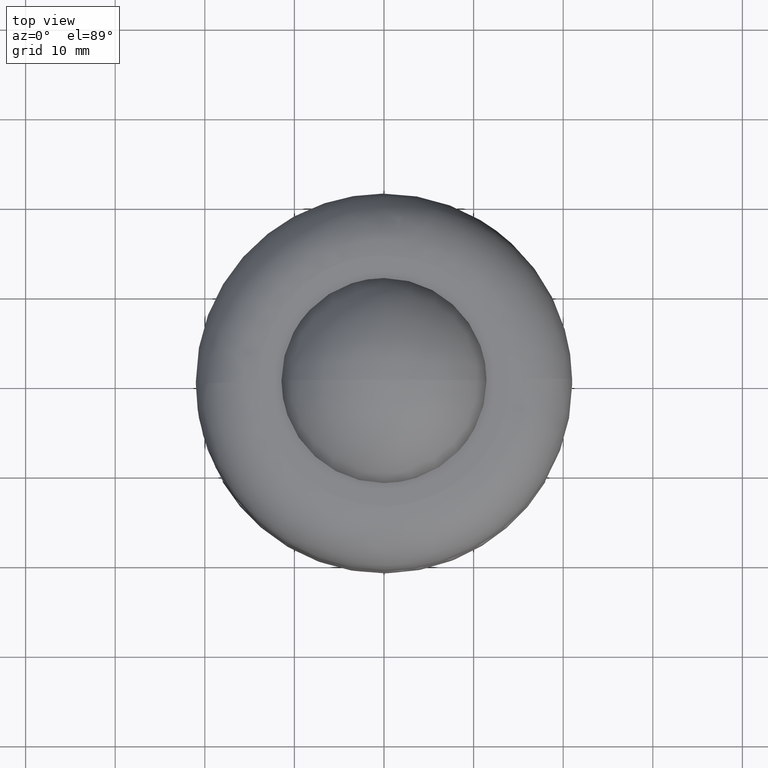
[diagram: clean part render]
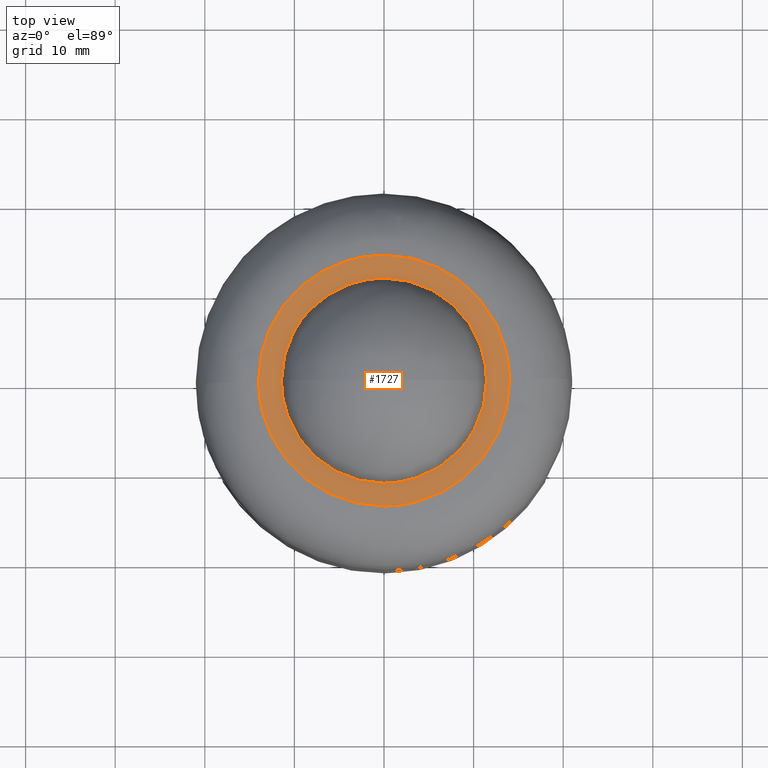
[diagram: same view with one face highlighted and labeled with its STEP entity id]
A machine part, top view. The second image highlights one B-rep face of the part: STEP entity #1727.
In plain terms, the highlighted face is a freeform B-spline surface patch.
Its self-contained STEP definition (entity closure, byte-faithful):
#1274=CARTESIAN_POINT('',(8.303556454866023,-7.879780887124213,18.500000000000000));
#1275=VERTEX_POINT('',#1274);
#1281=CARTESIAN_POINT('',(11.447270417003340,0.0,18.500000000000000));
#1282=VERTEX_POINT('',#1281);
#1283=CARTESIAN_POINT('',(11.447270417003340,0.0,18.500000000000000));
#1284=CARTESIAN_POINT('',(11.447320000426661,-0.633719969441657,18.499999999999879));
#1285=CARTESIAN_POINT('',(11.358697197519451,-1.697441727161382,18.500000000000199));
#1286=CARTESIAN_POINT('',(10.983668924799099,-3.355719295685856,18.499999999999851));
#1287=CARTESIAN_POINT('',(10.396849646364190,-4.906287065083700,18.500000000000089));
#1288=CARTESIAN_POINT('',(9.480059231251454,-6.500137004076095,18.500000000000060));
#1289=CARTESIAN_POINT('',(8.724227606796092,-7.436541015938870,18.499999999999901));
#1290=CARTESIAN_POINT('',(8.303556454866023,-7.879780887124213,18.500000000000000));
#1291=B_SPLINE_CURVE_WITH_KNOTS('',3,(#1283,#1284,#1285,#1286,#1287,#1288,#1289,#1290),.UNSPECIFIED.,.F.,.U.,(4,1,1,1,1,4),(7.953739E-009,1.901153511883061,3.191224342158241,5.092374427312802,6.857735032905979,8.690989031151139),.UNSPECIFIED.);
#1292=EDGE_CURVE('',#1282,#1275,#1291,.T.);
#1294=CARTESIAN_POINT('',(0.000000589903508,11.447270417003320,18.500000000000000));
#1295=VERTEX_POINT('',#1294);
#1296=CARTESIAN_POINT('',(0.000000589903508,11.447270417003320,18.500000000000000));
#1297=CARTESIAN_POINT('',(0.468259847205190,11.447282390936641,18.499999999999972));
#1298=CARTESIAN_POINT('',(1.451612652570179,11.386860953167769,18.500000000000011));
#1299=CARTESIAN_POINT('',(2.811166645851580,11.125093794531240,18.500000000000060));
#1300=CARTESIAN_POINT('',(4.039235827900971,10.731876239727921,18.499999999999950));
#1301=CARTESIAN_POINT('',(5.242589343448349,10.207294843110979,18.500000000000028));
#1302=CARTESIAN_POINT('',(6.538121012254577,9.446927869469979,18.500000000000121));
#1303=CARTESIAN_POINT('',(7.781714290151610,8.445334672533445,18.499999999999812));
#1304=CARTESIAN_POINT('',(8.938773603676742,7.215012677131437,18.500000000000131));
#1305=CARTESIAN_POINT('',(9.868134850958331,5.886822632998791,18.499999999999918));
#1306=CARTESIAN_POINT('',(10.566367869944070,4.478099744047025,18.499999999999819));
#1307=CARTESIAN_POINT('',(11.039986178784829,3.128398424708613,18.500000000000590));
#1308=CARTESIAN_POINT('',(11.364483222455320,1.662324250195984,18.499999999997840));
#1309=CARTESIAN_POINT('',(11.447305113705340,0.585328934192129,18.500000000001901));
#1310=CARTESIAN_POINT('',(11.447270417003340,0.0,18.500000000000000));
#1311=B_SPLINE_CURVE_WITH_KNOTS('',3,(#1296,#1297,#1298,#1299,#1300,#1301,#1302,#1303,#1304,#1305,#1306,#1307,#1308,#1309,#1310),.UNSPECIFIED.,.F.,.U.,(4,1,1,1,1,1,1,1,1,1,1,1,4),(0.000000030570249,1.404779889535721,2.950063587312441,4.144140803687536,5.267980348793644,6.883496906648892,8.639501712824668,10.044266130878849,11.940744284501109,13.486019010303350,14.750338572755259,16.225373062554802,17.981358197865521),.UNSPECIFIED.);
#1312=EDGE_CURVE('',#1295,#1282,#1311,.T.);
#1314=CARTESIAN_POINT('',(-8.303556454866001,7.879780887124189,18.500000000000000));
#1315=VERTEX_POINT('',#1314);
#1316=CARTESIAN_POINT('',(-8.303556454866001,7.879780887124189,18.500000000000000));
#1317=CARTESIAN_POINT('',(-7.754068797564290,8.459014075701516,18.500000000000050));
#1318=CARTESIAN_POINT('',(-6.810632311453194,9.264662142930463,18.500000000000000));
#1319=CARTESIAN_POINT('',(-5.318856103373752,10.169575634758370,18.500000000000000));
#1320=CARTESIAN_POINT('',(-3.814468589894138,10.844435355692889,18.499999999999829));
#1321=CARTESIAN_POINT('',(-2.008069236934327,11.331027979559840,18.500000000000082));
#1322=CARTESIAN_POINT('',(-0.653227442371821,11.447311547447580,18.499999999999940));
#1323=CARTESIAN_POINT('',(0.000000589903508,11.447270417003320,18.500000000000000));
#1324=B_SPLINE_CURVE_WITH_KNOTS('',3,(#1316,#1317,#1318,#1319,#1320,#1321,#1322,#1323),.UNSPECIFIED.,.F.,.U.,(4,1,1,1,1,4),(9.023557E-009,2.395173816305502,3.701632821560580,5.225823927819338,7.330684568304528,9.290370067449166),.UNSPECIFIED.);
#1325=EDGE_CURVE('',#1315,#1295,#1324,.T.);
#1355=CARTESIAN_POINT('',(-11.447270417003340,0.0,18.500000000000000));
#1356=VERTEX_POINT('',#1355);
#1357=CARTESIAN_POINT('',(-11.447270417003340,0.0,18.500000000000000));
#1358=CARTESIAN_POINT('',(-11.447311341483980,0.611086154012915,18.500000000000071));
#1359=CARTESIAN_POINT('',(-11.361884087224920,1.674812347984572,18.499999999999890));
#1360=CARTESIAN_POINT('',(-11.041040738788480,3.113179381243570,18.500000000000099));
#1361=CARTESIAN_POINT('',(-10.604992252249460,4.377325183961931,18.500000000000021));
#1362=CARTESIAN_POINT('',(-10.074764232959691,5.481115919608306,18.499999999999840));
#1363=CARTESIAN_POINT('',(-9.323169246866403,6.694474280955621,18.500000000000188));
#1364=CARTESIAN_POINT('',(-8.724232953971566,7.436543733493869,18.499999999999741));
#1365=CARTESIAN_POINT('',(-8.303556454866001,7.879780887124189,18.500000000000000));
#1366=B_SPLINE_CURVE_WITH_KNOTS('',3,(#1357,#1358,#1359,#1360,#1361,#1362,#1363,#1364,#1365),.UNSPECIFIED.,.F.,.U.,(4,1,1,1,1,1,4),(7.954855E-009,1.833254006202632,3.191224342158802,4.413382564738457,5.839256859481580,6.857735032905973,8.690989031151123),.UNSPECIFIED.);
#1367=EDGE_CURVE('',#1356,#1315,#1366,.T.);
#1369=CARTESIAN_POINT('',(-0.000000589903373,-11.447270417003320,18.500000000000000));
#1370=VERTEX_POINT('',#1369);
#1371=CARTESIAN_POINT('',(-0.000000589903373,-11.447270417003320,18.500000000000000));
#1372=CARTESIAN_POINT('',(-0.889721102987856,-11.447450386194291,18.500000000000011));
#1373=CARTESIAN_POINT('',(-2.247578215174296,-11.288118741256101,18.499999999999940));
#1374=CARTESIAN_POINT('',(-4.245404950438065,-10.682075220222019,18.500000000000089));
#1375=CARTESIAN_POINT('',(-5.896512576884751,-9.882547118144711,18.499999999999812));
#1376=CARTESIAN_POINT('',(-7.340327157821916,-8.832083415552209,18.500000000000110));
#1377=CARTESIAN_POINT('',(-8.505274288942145,-7.709252128971912,18.499999999999861));
#1378=CARTESIAN_POINT('',(-9.341440077599485,-6.664497970704894,18.500000000000082));
#1379=CARTESIAN_POINT('',(-10.058097302971859,-5.509339160911654,18.500000000000071));
#1380=CARTESIAN_POINT('',(-10.681698032253530,-4.221762772303125,18.500000000000540));
#1381=CARTESIAN_POINT('',(-11.276318049278119,-2.364662816187831,18.499999999999410));
#1382=CARTESIAN_POINT('',(-11.447456288105300,-0.866301742314741,18.500000000000480));
#1383=CARTESIAN_POINT('',(-11.447270417003340,0.0,18.500000000000000));
#1384=B_SPLINE_CURVE_WITH_KNOTS('',3,(#1371,#1372,#1373,#1374,#1375,#1376,#1377,#1378,#1379,#1380,#1381,#1382,#1383),.UNSPECIFIED.,.F.,.U.,(4,1,1,1,1,1,1,1,1,1,4),(0.000000030567435,2.669100593419371,4.073899480808542,6.251336868343179,8.147812758533389,9.412111741702789,11.097864013800930,12.151464255987870,13.486019010303480,15.382497479372420,17.981358197865600),.UNSPECIFIED.);
#1385=EDGE_CURVE('',#1370,#1356,#1384,.T.);
#1387=CARTESIAN_POINT('',(8.303556454866023,-7.879780887124213,18.500000000000000));
#1388=CARTESIAN_POINT('',(7.687506864216052,-8.529276371051738,18.500000000000000));
#1389=CARTESIAN_POINT('',(6.638909198336328,-9.401843637406635,18.499999999999979));
#1390=CARTESIAN_POINT('',(5.163765295191121,-10.240004363694240,18.500000000000028));
#1391=CARTESIAN_POINT('',(3.743652430181285,-10.860937821248781,18.499999999999890));
#1392=CARTESIAN_POINT('',(2.056461510139749,-11.326891981306380,18.500000000000281));
#1393=CARTESIAN_POINT('',(0.653225875703743,-11.447307145155390,18.499999999999851));
#1394=CARTESIAN_POINT('',(-0.000000589903373,-11.447270417003320,18.500000000000000));
#1395=B_SPLINE_CURVE_WITH_KNOTS('',3,(#1387,#1388,#1389,#1390,#1391,#1392,#1393,#1394),.UNSPECIFIED.,.F.,.U.,(4,1,1,1,1,4),(9.024289E-009,2.685499539092024,4.064546148651457,5.080666206256568,7.330684568304441,9.290370067449041),.UNSPECIFIED.);
#1396=EDGE_CURVE('',#1275,#1370,#1395,.T.);
#1620=CARTESIAN_POINT('',(-15.398599945730570,-15.398296080908240,18.500000000000000));
#1621=CARTESIAN_POINT('',(15.398600696749090,-15.398296080908240,18.500000000000000));
#1622=CARTESIAN_POINT('',(-15.398599945730570,15.398296831911940,18.500000000000000));
#1623=CARTESIAN_POINT('',(15.398600696749090,15.398296831911940,18.500000000000000));
#1624=B_SPLINE_SURFACE_WITH_KNOTS('',1,1,((#1620,#1622),(#1621,#1623)),.UNSPECIFIED.,.F.,.F.,.U.,(2,2),(2,2),(0.0,30.797200642479659),(0.0,30.796592912820181),.UNSPECIFIED.);
#1625=CARTESIAN_POINT('',(-13.998894668208980,-0.175924559958122,18.500000000000099));
#1626=VERTEX_POINT('',#1625);
#1627=CARTESIAN_POINT('',(-14.0,0.0,18.500000000000199));
#1628=VERTEX_POINT('',#1627);
#1629=CARTESIAN_POINT('',(-13.998894668208980,-0.175924559958122,18.500000000000099));
#1630=CARTESIAN_POINT('',(-14.0,0.0,18.500000000000199));
#1631=QUASI_UNIFORM_CURVE('',1,(#1629,#1630),.UNSPECIFIED.,.F.,.U.);
#1632=EDGE_CURVE('',#1626,#1628,#1631,.T.);
#1633=ORIENTED_EDGE('',*,*,#1632,.F.);
#1634=CARTESIAN_POINT('',(0.087950964759653,-13.999723734136371,18.500000000000050));
#1635=VERTEX_POINT('',#1634);
#1636=CARTESIAN_POINT('',(0.087950964759653,-13.999723734136371,18.500000000000050));
#1637=CARTESIAN_POINT('',(-0.453912140674605,-14.003138374008399,18.500000000000028));
#1638=CARTESIAN_POINT('',(-1.566557812998165,-13.945452350119000,18.500000000000099));
#1639=CARTESIAN_POINT('',(-3.509390735659405,-13.610165504799680,18.500000000000028));
#1640=CARTESIAN_POINT('',(-5.572947197943963,-12.917751413121140,18.500000000000099));
#1641=CARTESIAN_POINT('',(-7.410907318924651,-11.925865284476460,18.500000000000039));
#1642=CARTESIAN_POINT('',(-8.914920160852311,-10.837865182370400,18.500000000000199));
#1643=CARTESIAN_POINT('',(-10.028118451145289,-9.810306106331156,18.500000000000011));
#1644=CARTESIAN_POINT('',(-11.076610189941560,-8.603623684478597,18.500000000000242));
#1645=CARTESIAN_POINT('',(-12.060853020519630,-7.199909291385233,18.499999999999829));
#1646=CARTESIAN_POINT('',(-12.865637097855700,-5.619173277542878,18.500000000000082));
#1647=CARTESIAN_POINT('',(-13.431508675839609,-4.032363806407751,18.500000000000419));
#1648=CARTESIAN_POINT('',(-13.855426408712020,-2.313243264148199,18.499999999999709));
#1649=CARTESIAN_POINT('',(-13.988572241049811,-1.002934251611614,18.500000000000231));
#1650=CARTESIAN_POINT('',(-13.998894668208980,-0.175924559958122,18.500000000000099));
#1651=B_SPLINE_CURVE_WITH_KNOTS('',3,(#1636,#1637,#1638,#1639,#1640,#1641,#1642,#1643,#1644,#1645,#1646,#1647,#1648,#1649,#1650),.UNSPECIFIED.,.F.,.U.,(4,1,1,1,1,1,1,1,1,1,1,1,4),(0.000000027420494,1.625623845386599,3.336807190134518,5.903600280439143,8.128153986941314,9.582652873838848,11.464937932770660,12.662784760242619,14.373969304756461,16.598523367249371,17.967474646202358,19.421995778443151,21.903205052903608),.UNSPECIFIED.);
#1652=EDGE_CURVE('',#1635,#1626,#1651,.T.);
#1653=ORIENTED_EDGE('',*,*,#1652,.F.);
#1654=CARTESIAN_POINT('',(14.0,0.0,18.500000000000000));
#1655=VERTEX_POINT('',#1654);
#1656=CARTESIAN_POINT('',(14.0,0.0,18.500000000000000));
#1657=CARTESIAN_POINT('',(14.000083465000220,-0.855598191817318,18.499999999999989));
#1658=CARTESIAN_POINT('',(13.863612260058110,-2.338594286888410,18.500000000000110));
#1659=CARTESIAN_POINT('',(13.339122269175620,-4.387778585376409,18.499999999999950));
#1660=CARTESIAN_POINT('',(12.705710045423460,-5.950783855387305,18.499999999999972));
#1661=CARTESIAN_POINT('',(11.941896880931290,-7.355315956315829,18.500000000000039));
#1662=CARTESIAN_POINT('',(10.971306720890860,-8.768107893601380,18.499999999999851));
#1663=CARTESIAN_POINT('',(9.486776778496109,-10.395759761300480,18.500000000000519));
#1664=CARTESIAN_POINT('',(7.735688115851519,-11.738318805254099,18.499999999999631));
#1665=CARTESIAN_POINT('',(6.154633742569565,-12.598290434263630,18.500000000000760));
#1666=CARTESIAN_POINT('',(4.763561156943992,-13.192234353859339,18.499999999999620));
#1667=CARTESIAN_POINT('',(2.824512196377807,-13.791342153728550,18.500000000000419));
#1668=CARTESIAN_POINT('',(1.143181408474873,-13.993311613442570,18.499999999999780));
#1669=CARTESIAN_POINT('',(0.087950964759653,-13.999723734136371,18.500000000000050));
#1670=B_SPLINE_CURVE_WITH_KNOTS('',3,(#1656,#1657,#1658,#1659,#1660,#1661,#1662,#1663,#1664,#1665,#1666,#1667,#1668,#1669),.UNSPECIFIED.,.F.,.U.,(4,1,1,1,1,1,1,1,1,1,1,4),(0.000000027429078,2.566782105473475,4.449093524545646,6.331403811051612,7.614796159468487,9.240427133552759,11.464951570377210,14.202872500430701,15.828506032237829,16.855222588868180,18.737539407902378,21.903231106967091),.UNSPECIFIED.);
#1671=EDGE_CURVE('',#1655,#1635,#1670,.T.);
#1672=ORIENTED_EDGE('',*,*,#1671,.F.);
#1673=CARTESIAN_POINT('',(13.998894668208980,0.175924559958118,18.500000000000099));
#1674=VERTEX_POINT('',#1673);
#1675=CARTESIAN_POINT('',(13.998894668208980,0.175924559958118,18.500000000000099));
#1676=CARTESIAN_POINT('',(14.0,0.0,18.500000000000000));
#1677=QUASI_UNIFORM_CURVE('',1,(#1675,#1676),.UNSPECIFIED.,.F.,.U.);
#1678=EDGE_CURVE('',#1674,#1655,#1677,.T.);
#1679=ORIENTED_EDGE('',*,*,#1678,.F.);
#1680=CARTESIAN_POINT('',(-0.087950964759679,13.999723734136380,18.500000000000050));
#1681=VERTEX_POINT('',#1680);
#1682=CARTESIAN_POINT('',(-0.087950964759679,13.999723734136380,18.500000000000050));
#1683=CARTESIAN_POINT('',(0.767628740298858,14.005189867884839,18.500000000000028));
#1684=CARTESIAN_POINT('',(2.251453137069658,13.878030360053060,18.500000000000099));
#1685=CARTESIAN_POINT('',(4.165204622849811,13.400978597956779,18.500000000000000));
#1686=CARTESIAN_POINT('',(5.633297923471768,12.842568292675731,18.500000000000110));
#1687=CARTESIAN_POINT('',(7.063051771723146,12.126560131848080,18.500000000000021));
#1688=CARTESIAN_POINT('',(8.327647320834826,11.291762061280471,18.499999999999918));
#1689=CARTESIAN_POINT('',(9.531959743653699,10.284483399145889,18.500000000000309));
#1690=CARTESIAN_POINT('',(10.552796762136071,9.245306820418790,18.499999999999961));
#1691=CARTESIAN_POINT('',(11.555566558315141,7.962342237446810,18.500000000000099));
#1692=CARTESIAN_POINT('',(12.561681414052480,6.300138054941018,18.500000000000028));
#1693=CARTESIAN_POINT('',(13.287992745719620,4.555604411296890,18.500000000000089));
#1694=CARTESIAN_POINT('',(13.840467144638550,2.427134241220979,18.500000000000071));
#1695=CARTESIAN_POINT('',(13.987882449351410,1.059976797026810,18.500000000000089));
#1696=CARTESIAN_POINT('',(13.998894668208980,0.175924559958118,18.500000000000099));
#1697=B_SPLINE_CURVE_WITH_KNOTS('',3,(#1682,#1683,#1684,#1685,#1686,#1687,#1688,#1689,#1690,#1691,#1692,#1693,#1694,#1695,#1696),.UNSPECIFIED.,.F.,.U.,(4,1,1,1,1,1,1,1,1,1,1,1,4),(0.000000027415783,2.566779052236441,4.449088232309048,5.903600280437431,7.272551432735071,9.240416142014583,10.438266905331270,11.978313670955821,13.603943318796770,15.315126732824000,17.796359936183340,19.250864272598911,21.903205052903630),.UNSPECIFIED.);
#1698=EDGE_CURVE('',#1681,#1674,#1697,.T.);
#1699=ORIENTED_EDGE('',*,*,#1698,.F.);
#1700=CARTESIAN_POINT('',(-14.0,0.0,18.500000000000199));
#1701=CARTESIAN_POINT('',(-14.000086443339800,0.855599043169993,18.500000000000171));
#1702=CARTESIAN_POINT('',(-13.845272145472070,2.538231686489438,18.500000000000291));
#1703=CARTESIAN_POINT('',(-13.160839678336121,4.992848175798087,18.499999999999929));
#1704=CARTESIAN_POINT('',(-12.109539917154381,7.156740551412748,18.500000000000501));
#1705=CARTESIAN_POINT('',(-10.912369428463251,8.832449771041857,18.499999999999559));
#1706=CARTESIAN_POINT('',(-9.765506250923361,10.066842206260100,18.500000000001219));
#1707=CARTESIAN_POINT('',(-8.668854949936083,11.025294987410980,18.499999999999421));
#1708=CARTESIAN_POINT('',(-7.222048487110067,12.046017738841790,18.500000000000739));
#1709=CARTESIAN_POINT('',(-5.492734862066379,12.939414432199300,18.500000000000181));
#1710=CARTESIAN_POINT('',(-3.810665593121170,13.498685975989581,18.500000000000188));
#1711=CARTESIAN_POINT('',(-2.055107423598437,13.885962056152151,18.499999999999961));
#1712=CARTESIAN_POINT('',(-0.915013076974328,13.994613123814741,18.500000000000270));
#1713=CARTESIAN_POINT('',(-0.087950964759679,13.999723734136380,18.500000000000050));
#1714=B_SPLINE_CURVE_WITH_KNOTS('',3,(#1700,#1701,#1702,#1703,#1704,#1705,#1706,#1707,#1708,#1709,#1710,#1711,#1712,#1713),.UNSPECIFIED.,.F.,.U.,(4,1,1,1,1,1,1,1,1,1,1,4),(0.000000027429568,2.566782105473759,5.048009662709045,7.614796159468423,9.753800849629446,11.208277406290660,12.662799822760819,14.117307264595590,16.512983079341559,18.480860269788391,19.422018881117278,21.903231106967070),.UNSPECIFIED.);
#1715=EDGE_CURVE('',#1628,#1681,#1714,.T.);
#1716=ORIENTED_EDGE('',*,*,#1715,.F.);
#1717=EDGE_LOOP('',(#1633,#1653,#1672,#1679,#1699,#1716));
#1718=FACE_OUTER_BOUND('',#1717,.T.);
#1719=ORIENTED_EDGE('',*,*,#1312,.T.);
#1720=ORIENTED_EDGE('',*,*,#1292,.T.);
#1721=ORIENTED_EDGE('',*,*,#1396,.T.);
#1722=ORIENTED_EDGE('',*,*,#1385,.T.);
#1723=ORIENTED_EDGE('',*,*,#1367,.T.);
#1724=ORIENTED_EDGE('',*,*,#1325,.T.);
#1725=EDGE_LOOP('',(#1719,#1720,#1721,#1722,#1723,#1724));
#1726=FACE_BOUND('',#1725,.T.);
#1727=ADVANCED_FACE('',(#1718,#1726),#1624,.T.);